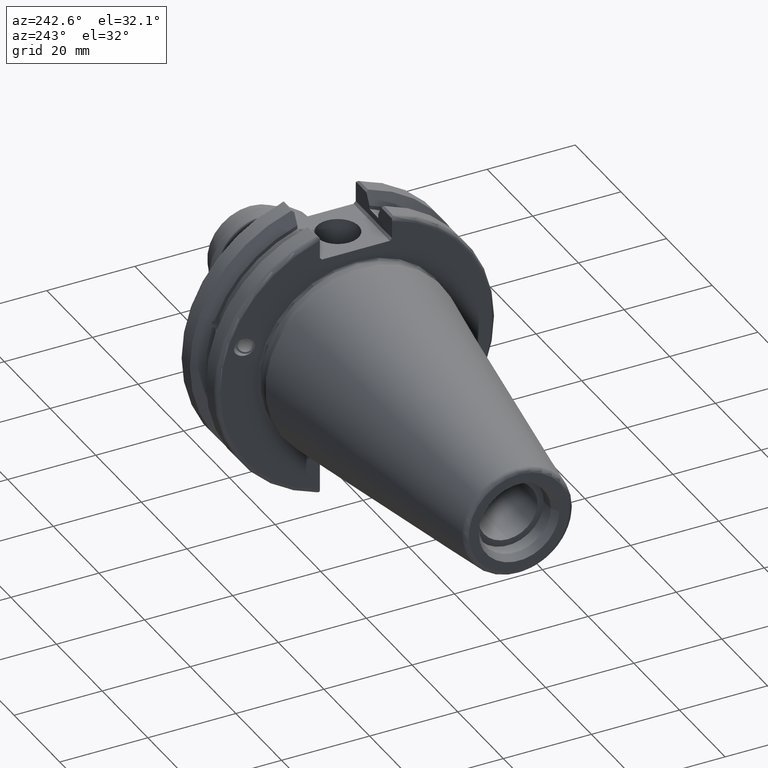
[diagram: clean part render]
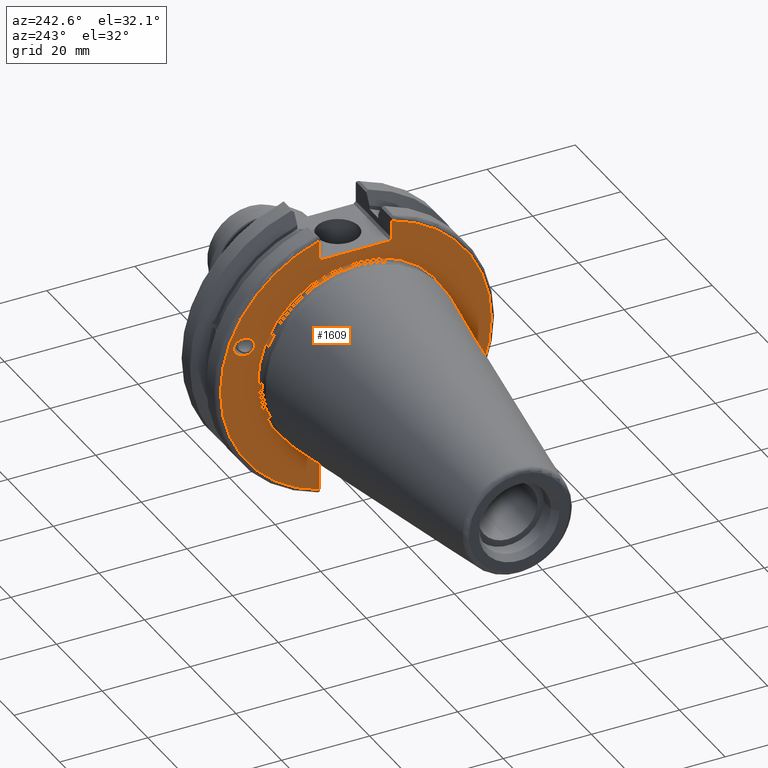
[diagram: same view with one face highlighted and labeled with its STEP entity id]
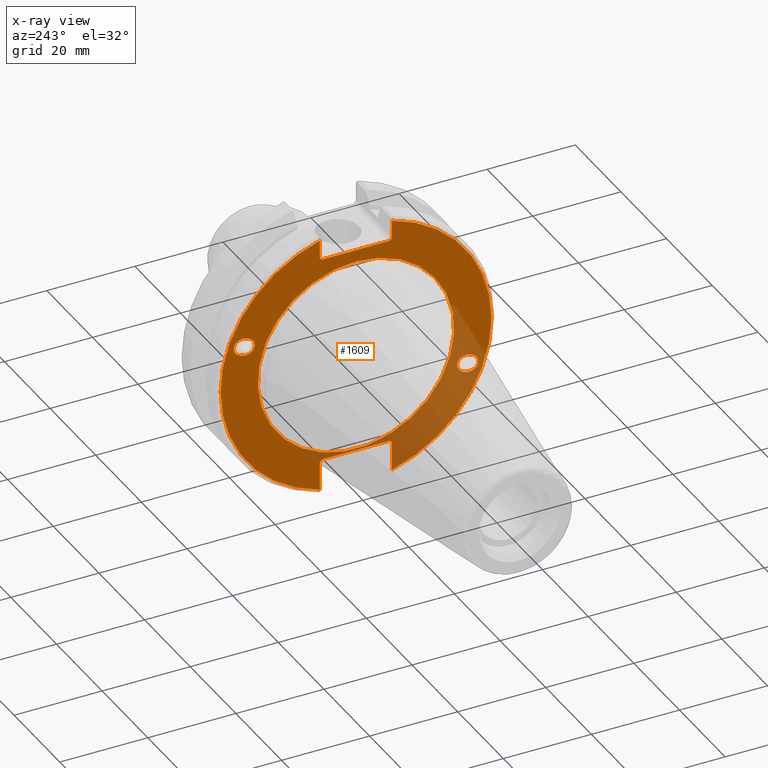
[diagram: x-ray of the same camera — body ghosted, the highlighted face saturated]
A machine part, auxiliary view. The second image highlights one B-rep face of the part: STEP entity #1609.
The next image is the same camera in x-ray: the body ghosted, the highlighted face saturated — about 23% of this face is hidden behind the body in this view.
In plain terms, the highlighted planar face has unit normal (-1, 0, 0).
Its self-contained STEP definition (entity closure, byte-faithful):
#66=FACE_BOUND('',#327,.T.);
#67=FACE_BOUND('',#328,.T.);
#68=FACE_BOUND('',#329,.T.);
#83=PLANE('',#1789);
#154=CIRCLE('',#1787,22.3);
#156=CIRCLE('',#1790,30.75);
#157=CIRCLE('',#1791,30.75);
#225=FACE_OUTER_BOUND('',#326,.T.);
#326=EDGE_LOOP('',(#1296,#1297,#1298,#1299,#1300,#1301,#1302,#1303,#1304,
#1305,#1306,#1307));
#327=EDGE_LOOP('',(#1308));
#328=EDGE_LOOP('',(#1309));
#329=EDGE_LOOP('',(#1310));
#468=LINE('',#3009,#565);
#469=LINE('',#3011,#566);
#470=LINE('',#3013,#567);
#471=LINE('',#3015,#568);
#472=LINE('',#3017,#569);
#473=LINE('',#3021,#570);
#474=LINE('',#3023,#571);
#475=LINE('',#3025,#572);
#476=LINE('',#3027,#573);
#477=LINE('',#3028,#574);
#565=VECTOR('',#2139,10.);
#566=VECTOR('',#2140,10.);
#567=VECTOR('',#2141,10.);
#568=VECTOR('',#2142,10.);
#569=VECTOR('',#2143,10.);
#570=VECTOR('',#2146,10.);
#571=VECTOR('',#2147,10.);
#572=VECTOR('',#2148,10.);
#573=VECTOR('',#2149,10.);
#574=VECTOR('',#2150,10.);
#622=ELLIPSE('',#1736,2.44154917752292,2.00000000000001);
#631=ELLIPSE('',#1779,2.44154917752292,2.00000000000001);
#695=VERTEX_POINT('',#2802);
#735=VERTEX_POINT('',#2985);
#740=VERTEX_POINT('',#3000);
#741=VERTEX_POINT('',#3005);
#742=VERTEX_POINT('',#3006);
#743=VERTEX_POINT('',#3008);
#744=VERTEX_POINT('',#3010);
#745=VERTEX_POINT('',#3012);
#746=VERTEX_POINT('',#3014);
#747=VERTEX_POINT('',#3016);
#748=VERTEX_POINT('',#3018);
#749=VERTEX_POINT('',#3020);
#750=VERTEX_POINT('',#3022);
#751=VERTEX_POINT('',#3024);
#752=VERTEX_POINT('',#3026);
#880=EDGE_CURVE('',#695,#695,#622,.T.);
#936=EDGE_CURVE('',#735,#735,#631,.T.);
#943=EDGE_CURVE('',#740,#740,#154,.T.);
#945=EDGE_CURVE('',#741,#742,#156,.T.);
#946=EDGE_CURVE('',#741,#743,#468,.T.);
#947=EDGE_CURVE('',#744,#743,#469,.T.);
#948=EDGE_CURVE('',#744,#745,#470,.T.);
#949=EDGE_CURVE('',#746,#745,#471,.T.);
#950=EDGE_CURVE('',#746,#747,#472,.T.);
#951=EDGE_CURVE('',#748,#747,#157,.T.);
#952=EDGE_CURVE('',#748,#749,#473,.T.);
#953=EDGE_CURVE('',#750,#749,#474,.T.);
#954=EDGE_CURVE('',#750,#751,#475,.T.);
#955=EDGE_CURVE('',#752,#751,#476,.T.);
#956=EDGE_CURVE('',#752,#742,#477,.T.);
#1296=ORIENTED_EDGE('',*,*,#945,.F.);
#1297=ORIENTED_EDGE('',*,*,#946,.T.);
#1298=ORIENTED_EDGE('',*,*,#947,.F.);
#1299=ORIENTED_EDGE('',*,*,#948,.T.);
#1300=ORIENTED_EDGE('',*,*,#949,.F.);
#1301=ORIENTED_EDGE('',*,*,#950,.T.);
#1302=ORIENTED_EDGE('',*,*,#951,.F.);
#1303=ORIENTED_EDGE('',*,*,#952,.T.);
#1304=ORIENTED_EDGE('',*,*,#953,.F.);
#1305=ORIENTED_EDGE('',*,*,#954,.T.);
#1306=ORIENTED_EDGE('',*,*,#955,.F.);
#1307=ORIENTED_EDGE('',*,*,#956,.T.);
#1308=ORIENTED_EDGE('',*,*,#880,.T.);
#1309=ORIENTED_EDGE('',*,*,#936,.T.);
#1310=ORIENTED_EDGE('',*,*,#943,.F.);
#1609=ADVANCED_FACE('',(#225,#66,#67,#68),#83,.T.);
#1736=AXIS2_PLACEMENT_3D('',#2804,#2010,#2011);
#1779=AXIS2_PLACEMENT_3D('',#2987,#2113,#2114);
#1787=AXIS2_PLACEMENT_3D('',#3002,#2131,#2132);
#1789=AXIS2_PLACEMENT_3D('',#3004,#2135,#2136);
#1790=AXIS2_PLACEMENT_3D('',#3007,#2137,#2138);
#1791=AXIS2_PLACEMENT_3D('',#3019,#2144,#2145);
#2010=DIRECTION('center_axis',(1.,0.,0.));
#2011=DIRECTION('ref_axis',(5.68400912649E-17,-0.939692620785909,-0.342020143325667));
#2113=DIRECTION('center_axis',(1.,0.,0.));
#2114=DIRECTION('ref_axis',(5.68400912649E-17,0.939692620785909,0.342020143325667));
#2131=DIRECTION('center_axis',(-1.,0.,0.));
#2132=DIRECTION('ref_axis',(0.,-1.,1.83697019872103E-16));
#2135=DIRECTION('center_axis',(-1.,0.,0.));
#2136=DIRECTION('ref_axis',(0.,0.,1.));
#2137=DIRECTION('center_axis',(1.,0.,0.));
#2138=DIRECTION('ref_axis',(0.,-1.,1.60812264967664E-16));
#2139=DIRECTION('',(0.,0.,-1.));
#2140=DIRECTION('',(0.,-0.70710678118655,0.707106781186545));
#2141=DIRECTION('',(0.,1.,0.));
#2142=DIRECTION('',(0.,-0.707106781186549,-0.707106781186546));
#2143=DIRECTION('',(0.,0.,1.));
#2144=DIRECTION('center_axis',(1.,0.,0.));
#2145=DIRECTION('ref_axis',(0.,1.,1.60812264967664E-16));
#2146=DIRECTION('',(0.,0.,1.));
#2147=DIRECTION('',(0.,0.707106781186549,-0.707106781186546));
#2148=DIRECTION('',(0.,-1.,0.));
#2149=DIRECTION('',(0.,0.707106781186549,0.707106781186546));
#2150=DIRECTION('',(0.,0.,-1.));
#2802=CARTESIAN_POINT('',(3.175,-23.0773950158153,-8.39948487016));
#2804=CARTESIAN_POINT('Origin',(3.175,-25.3717007612195,-9.23454386979305));
#2985=CARTESIAN_POINT('',(3.175,23.0773950158153,8.39948487016));
#2987=CARTESIAN_POINT('Origin',(3.175,25.3717007612195,9.23454386979306));
#3000=CARTESIAN_POINT('',(3.175,-2.7309623620986E-15,22.3));
#3002=CARTESIAN_POINT('Origin',(3.175,0.,0.));
#3004=CARTESIAN_POINT('Origin',(3.175,31.75,0.));
#3005=CARTESIAN_POINT('',(3.175,-8.18999999999999,29.6392712461019));
#3006=CARTESIAN_POINT('',(3.175,-8.19,-29.6392712461019));
#3007=CARTESIAN_POINT('Origin',(3.175,0.,0.));
#3008=CARTESIAN_POINT('',(3.175,-8.18999999999999,25.5));
#3009=CARTESIAN_POINT('',(3.175,-8.18999999999999,12.5));
#3010=CARTESIAN_POINT('',(3.175,-7.68999999999999,25.));
#3011=CARTESIAN_POINT('',(3.175,8.29500000000007,9.01500000000004));
#3012=CARTESIAN_POINT('',(3.175,7.69,25.));
#3013=CARTESIAN_POINT('',(3.175,15.875,25.));
#3014=CARTESIAN_POINT('',(3.175,8.19,25.5));
#3015=CARTESIAN_POINT('',(3.175,7.58000000000002,24.89));
#3016=CARTESIAN_POINT('',(3.175,8.19,29.6392712461019));
#3017=CARTESIAN_POINT('',(3.175,8.19,12.5));
#3018=CARTESIAN_POINT('',(3.175,8.18999999999999,-29.6392712461019));
#3019=CARTESIAN_POINT('Origin',(3.175,0.,0.));
#3020=CARTESIAN_POINT('',(3.175,8.18999999999999,-23.1));
#3021=CARTESIAN_POINT('',(3.175,8.18999999999999,-11.3));
#3022=CARTESIAN_POINT('',(3.175,7.69,-22.6));
#3023=CARTESIAN_POINT('',(3.175,8.18000000000002,-23.09));
#3024=CARTESIAN_POINT('',(3.175,-7.69,-22.6));
#3025=CARTESIAN_POINT('',(3.175,15.875,-22.6));
#3026=CARTESIAN_POINT('',(3.175,-8.19,-23.1));
#3027=CARTESIAN_POINT('',(3.175,7.69500000000004,-7.21500000000002));
#3028=CARTESIAN_POINT('',(3.175,-8.19,-11.3));